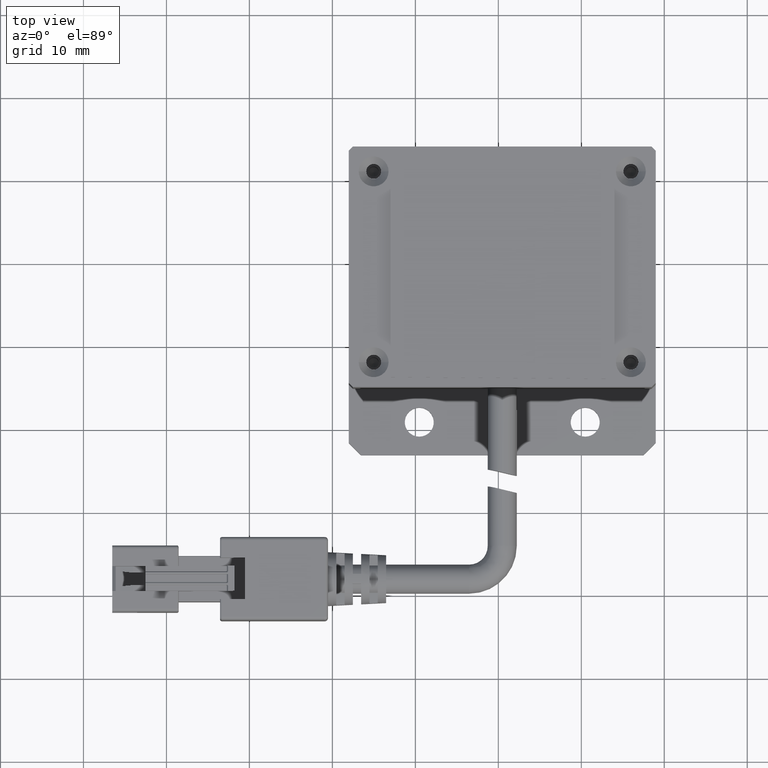
[diagram: clean part render]
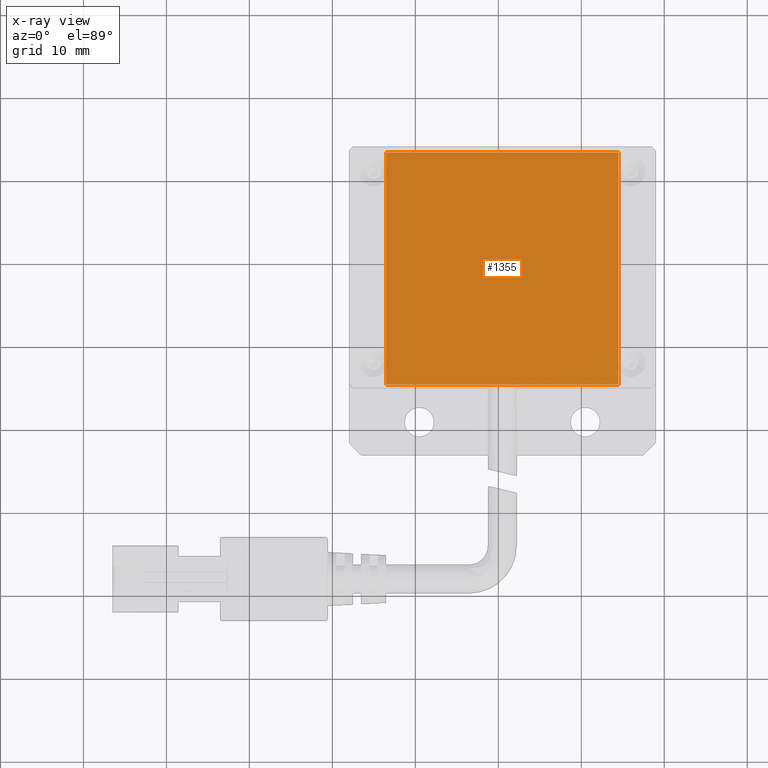
[diagram: x-ray — body ghosted, one internal face saturated and labeled with its STEP entity id]
A machine part, top view, then the same camera in x-ray: the body is ghosted and one INTERNAL B-rep face — a face not visible from any outside direction — is saturated and labeled: STEP entity #1355.
In plain terms, the highlighted planar face has unit normal (0, 0, 1).
Its self-contained STEP definition (entity closure, byte-faithful):
#750 = AXIS2_PLACEMENT_3D ( 'NONE', #1710, #1446, #820 ) ;
#820 = DIRECTION ( 'NONE',  ( 1.000000000000000000, -1.084202172485504600E-016, 0.0000000000000000000 ) ) ;
#1355 = ADVANCED_FACE ( 'NONE', ( #5238 ), #23176, .F. ) ;
#1446 = DIRECTION ( 'NONE',  ( 0.0000000000000000000, 0.0000000000000000000, 1.000000000000000000 ) ) ;
#1710 = CARTESIAN_POINT ( 'NONE',  ( 0.4705994654448219500, -0.5536464299350507500, 0.2999999999836304200 ) ) ;
#2222 = VERTEX_POINT ( 'NONE', #3895 ) ;
#2971 = DIRECTION ( 'NONE',  ( 1.000000000000000000, -1.084202172485504600E-016, 0.0000000000000000000 ) ) ;
#3318 = LINE ( 'NONE', #13960, #19071 ) ;
#3883 = DIRECTION ( 'NONE',  ( -1.000000000000000000, 1.084202172485504600E-016, -0.0000000000000000000 ) ) ;
#3895 = CARTESIAN_POINT ( 'NONE',  ( 14.47059946544482200, -14.55364642993505700, 0.2999999999836304200 ) ) ;
#4924 = ORIENTED_EDGE ( 'NONE', *, *, #12095, .F. ) ;
#5095 = CARTESIAN_POINT ( 'NONE',  ( -13.52940053455518000, -0.5536464299350492000, 0.2999999999836304200 ) ) ;
#5238 = FACE_OUTER_BOUND ( 'NONE', #18239, .T. ) ;
#6506 = LINE ( 'NONE', #16165, #22197 ) ;
#7772 = CARTESIAN_POINT ( 'NONE',  ( -13.52940053455517800, 13.44635357006494800, 0.2999999999836304200 ) ) ;
#9318 = VECTOR ( 'NONE', #13359, 1000.000000000000000 ) ;
#9956 = VECTOR ( 'NONE', #2971, 1000.000000000000000 ) ;
#11463 = VERTEX_POINT ( 'NONE', #25540 ) ;
#12095 = EDGE_CURVE ( 'NONE', #2222, #23771, #3318, .T. ) ;
#13121 = CARTESIAN_POINT ( 'NONE',  ( 0.4705994654448204000, -14.55364642993505500, 0.2999999999836304200 ) ) ;
#13359 = DIRECTION ( 'NONE',  ( -1.084202172485504600E-016, -1.000000000000000000, -0.0000000000000000000 ) ) ;
#13960 = CARTESIAN_POINT ( 'NONE',  ( 14.47059946544482400, -0.5536464299350523100, 0.2999999999836304200 ) ) ;
#14770 = LINE ( 'NONE', #5095, #9318 ) ;
#15092 = VERTEX_POINT ( 'NONE', #7772 ) ;
#16059 = EDGE_CURVE ( 'NONE', #11463, #2222, #20868, .T. ) ;
#16165 = CARTESIAN_POINT ( 'NONE',  ( 0.4705994654448234500, 13.44635357006494700, 0.2999999999836304200 ) ) ;
#18239 = EDGE_LOOP ( 'NONE', ( #21387, #22262, #4924, #21590 ) ) ;
#19071 = VECTOR ( 'NONE', #26203, 1000.000000000000000 ) ;
#19517 = EDGE_CURVE ( 'NONE', #15092, #11463, #14770, .T. ) ;
#20868 = LINE ( 'NONE', #13121, #9956 ) ;
#21387 = ORIENTED_EDGE ( 'NONE', *, *, #19517, .F. ) ;
#21590 = ORIENTED_EDGE ( 'NONE', *, *, #16059, .F. ) ;
#22169 = EDGE_CURVE ( 'NONE', #23771, #15092, #6506, .T. ) ;
#22197 = VECTOR ( 'NONE', #3883, 1000.000000000000000 ) ;
#22213 = CARTESIAN_POINT ( 'NONE',  ( 14.47059946544482200, 13.44635357006494500, 0.2999999999836304200 ) ) ;
#22262 = ORIENTED_EDGE ( 'NONE', *, *, #22169, .F. ) ;
#23176 = PLANE ( 'NONE',  #750 ) ;
#23771 = VERTEX_POINT ( 'NONE', #22213 ) ;
#25540 = CARTESIAN_POINT ( 'NONE',  ( -13.52940053455517800, -14.55364642993505300, 0.2999999999836304200 ) ) ;
#26203 = DIRECTION ( 'NONE',  ( 1.084202172485504600E-016, 1.000000000000000000, 0.0000000000000000000 ) ) ;